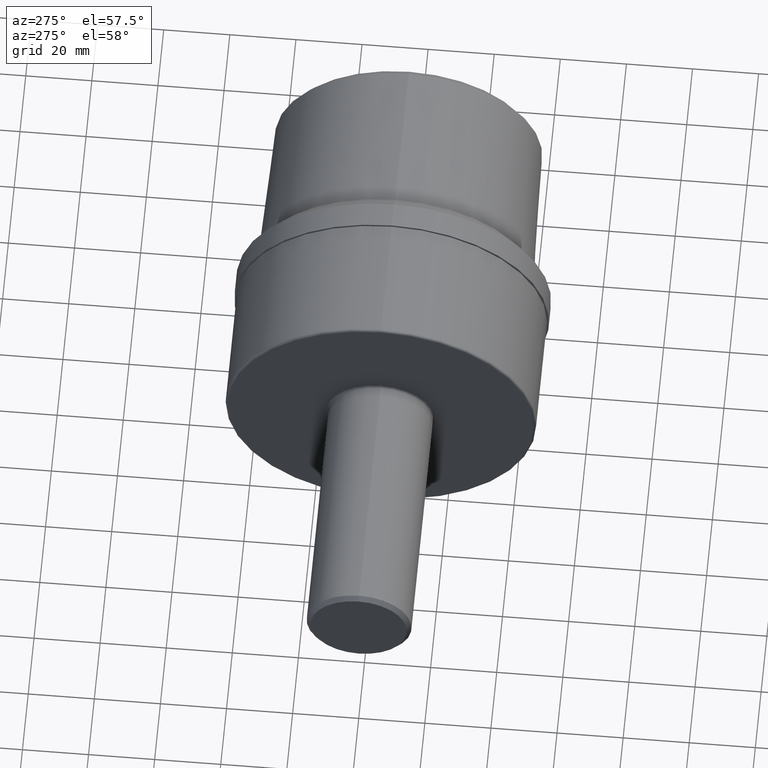
[diagram: clean part render]
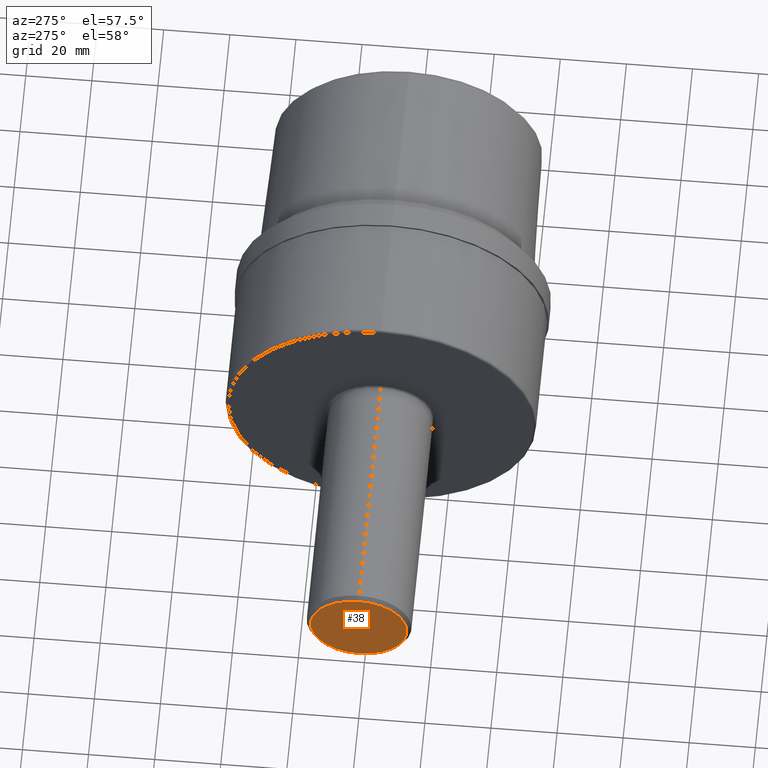
[diagram: same view with one face highlighted and labeled with its STEP entity id]
A machine part, auxiliary view. The second image highlights one B-rep face of the part: STEP entity #38.
In plain terms, the highlighted planar face has unit normal (1, 0, 0).
Its self-contained STEP definition (entity closure, byte-faithful):
#2 = CARTESIAN_POINT ( 'NONE',  ( 0.0000000000000000000, 7.346043824685398525E-17, 0.5748500000000001942 ) ) ;
#12 = CIRCLE ( 'NONE', #292, 0.5748500000000001942 ) ;
#15 = ORIENTED_EDGE ( 'NONE', *, *, #437, .T. ) ;
#38 = ADVANCED_FACE ( 'NONE', ( #399 ), #594, .F. ) ;
#90 = DIRECTION ( 'NONE',  ( 0.0000000000000000000, 0.0000000000000000000, 1.000000000000000000 ) ) ;
#94 = AXIS2_PLACEMENT_3D ( 'NONE', #366, #353, #563 ) ;
#122 = DIRECTION ( 'NONE',  ( -1.000000000000000000, -0.0000000000000000000, -0.0000000000000000000 ) ) ;
#138 = AXIS2_PLACEMENT_3D ( 'NONE', #611, #122, #90 ) ;
#222 = CIRCLE ( 'NONE', #138, 0.5748500000000001942 ) ;
#253 = DIRECTION ( 'NONE',  ( -1.000000000000000000, -0.0000000000000000000, -0.0000000000000000000 ) ) ;
#292 = AXIS2_PLACEMENT_3D ( 'NONE', #298, #253, #335 ) ;
#297 = VERTEX_POINT ( 'NONE', #2 ) ;
#298 = CARTESIAN_POINT ( 'NONE',  ( 0.0000000000000000000, 0.0000000000000000000, 0.0000000000000000000 ) ) ;
#335 = DIRECTION ( 'NONE',  ( 0.0000000000000000000, 0.0000000000000000000, 1.000000000000000000 ) ) ;
#353 = DIRECTION ( 'NONE',  ( 1.000000000000000000, 0.0000000000000000000, 0.0000000000000000000 ) ) ;
#366 = CARTESIAN_POINT ( 'NONE',  ( 0.0000000000000000000, 0.0000000000000000000, 0.0000000000000000000 ) ) ;
#399 = FACE_OUTER_BOUND ( 'NONE', #450, .T. ) ;
#437 = EDGE_CURVE ( 'NONE', #536, #297, #12, .T. ) ;
#450 = EDGE_LOOP ( 'NONE', ( #15, #474 ) ) ;
#454 = CARTESIAN_POINT ( 'NONE',  ( 0.0000000000000000000, 0.0000000000000000000, -0.5748500000000001942 ) ) ;
#474 = ORIENTED_EDGE ( 'NONE', *, *, #570, .T. ) ;
#536 = VERTEX_POINT ( 'NONE', #454 ) ;
#563 = DIRECTION ( 'NONE',  ( 0.0000000000000000000, 0.0000000000000000000, -1.000000000000000000 ) ) ;
#570 = EDGE_CURVE ( 'NONE', #297, #536, #222, .T. ) ;
#594 = PLANE ( 'NONE',  #94 ) ;
#611 = CARTESIAN_POINT ( 'NONE',  ( 0.0000000000000000000, 0.0000000000000000000, 0.0000000000000000000 ) ) ;